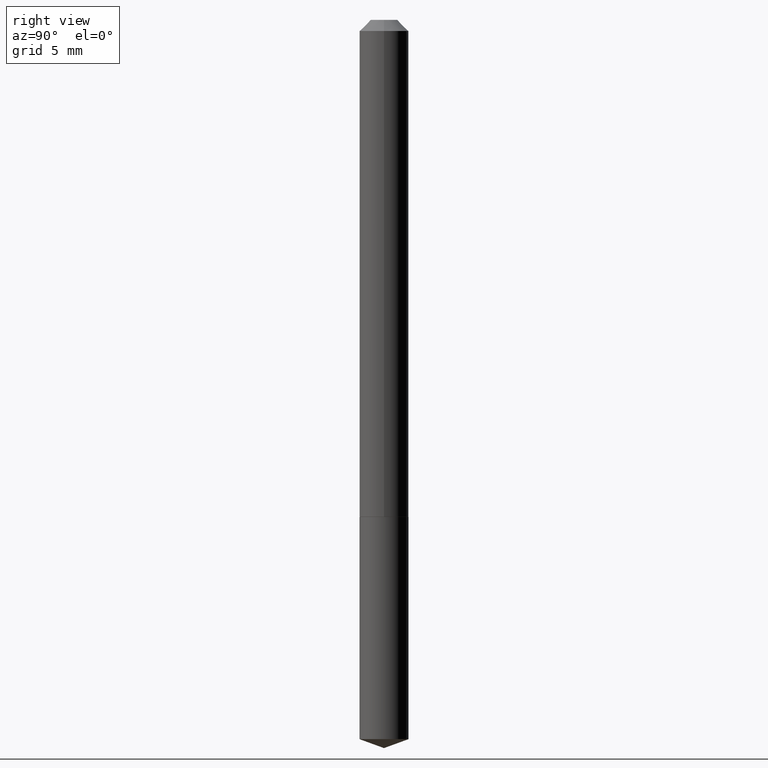
[diagram: clean part render]
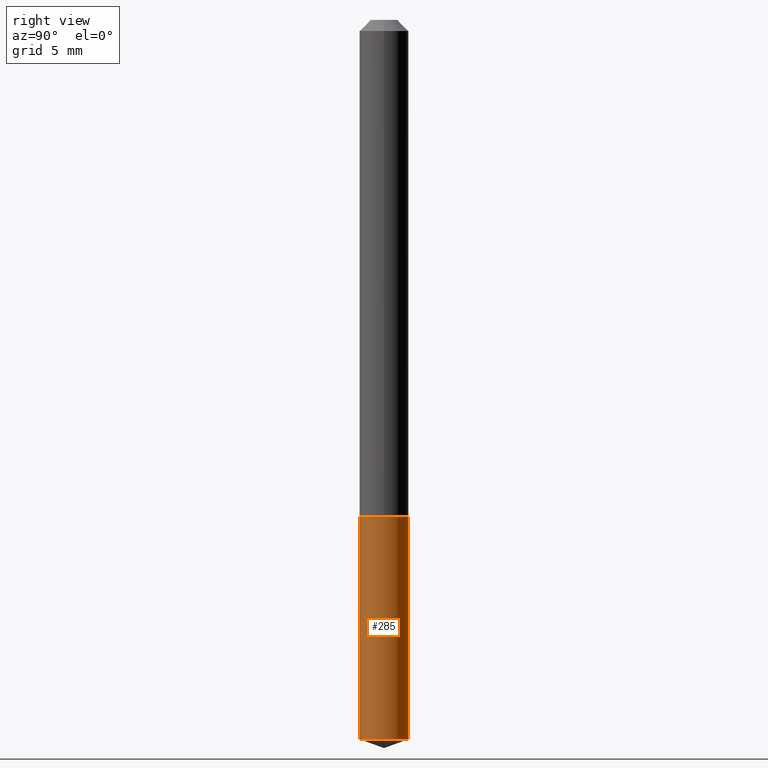
[diagram: same view with one face highlighted and labeled with its STEP entity id]
A machine part, right view. The second image highlights one B-rep face of the part: STEP entity #285.
In plain terms, the highlighted cylindrical surface (edge-blend (fillet) strip) has radius 1.7501 mm, axis along (-0, 0, 1).
Its self-contained STEP definition (entity closure, byte-faithful):
#5 = EDGE_LOOP ( 'NONE', ( #258, #278, #136, #332 ) ) ;
#6 = LINE ( 'NONE', #368, #240 ) ;
#30 = CARTESIAN_POINT ( 'NONE',  ( 3.417787203524348143E-29, -4.879694319167181624E-15, -1.397600000000000398 ) ) ;
#33 = DIRECTION ( 'NONE',  ( -6.982962677686265922E-15, -1.000000000000000000, 3.964946289788480896E-15 ) ) ;
#36 = DIRECTION ( 'NONE',  ( -2.444479038339163535E-29, 3.492898742732666091E-15, 1.000000000000000000 ) ) ;
#59 = CYLINDRICAL_SURFACE ( 'NONE', #268, 0.06890000000000000291 ) ;
#81 = CARTESIAN_POINT ( 'NONE',  ( 4.895639449387585498E-16, 0.06889999999999511793, -1.397600000000000620 ) ) ;
#89 = DIRECTION ( 'NONE',  ( -2.444479038339163815E-29, 3.492898742732665697E-15, 1.000000000000000000 ) ) ;
#106 = VERTEX_POINT ( 'NONE', #81 ) ;
#110 = DIRECTION ( 'NONE',  ( -2.444479038339163535E-29, 3.492898742732666091E-15, 1.000000000000000000 ) ) ;
#114 = CARTESIAN_POINT ( 'NONE',  ( 4.895639449387583525E-16, 0.06889999999999295299, -2.022122450859060283 ) ) ;
#119 = DIRECTION ( 'NONE',  ( -6.982962677686265922E-15, -1.000000000000000000, 3.964946289788480896E-15 ) ) ;
#122 = CIRCLE ( 'NONE', #246, 0.06890000000000000291 ) ;
#136 = ORIENTED_EDGE ( 'NONE', *, *, #298, .F. ) ;
#148 = VECTOR ( 'NONE', #344, 39.37007874015748143 ) ;
#168 = VERTEX_POINT ( 'NONE', #114 ) ;
#173 = CARTESIAN_POINT ( 'NONE',  ( -4.811261284925343361E-16, -0.06890000000000705282, -2.022122450859059839 ) ) ;
#175 = LINE ( 'NONE', #390, #148 ) ;
#177 = DIRECTION ( 'NONE',  ( -6.982962677686265922E-15, -1.000000000000000000, 3.964946289788480896E-15 ) ) ;
#182 = VERTEX_POINT ( 'NONE', #173 ) ;
#208 = EDGE_CURVE ( 'NONE', #168, #106, #175, .T. ) ;
#240 = VECTOR ( 'NONE', #89, 39.37007874015748143 ) ;
#246 = AXIS2_PLACEMENT_3D ( 'NONE', #30, #349, #119 ) ;
#255 = AXIS2_PLACEMENT_3D ( 'NONE', #333, #36, #33 ) ;
#258 = ORIENTED_EDGE ( 'NONE', *, *, #302, .T. ) ;
#267 = CARTESIAN_POINT ( 'NONE',  ( 3.417787203524348143E-29, -4.879694319167181624E-15, -1.397600000000000398 ) ) ;
#268 = AXIS2_PLACEMENT_3D ( 'NONE', #267, #110, #177 ) ;
#278 = ORIENTED_EDGE ( 'NONE', *, *, #208, .T. ) ;
#285 = ADVANCED_FACE ( 'NONE', ( #352 ), #59, .T. ) ;
#298 = EDGE_CURVE ( 'NONE', #371, #106, #122, .T. ) ;
#302 = EDGE_CURVE ( 'NONE', #182, #168, #326, .T. ) ;
#310 = CARTESIAN_POINT ( 'NONE',  ( -4.811261284925496203E-16, -0.06890000000000488789, -1.397600000000000176 ) ) ;
#326 = CIRCLE ( 'NONE', #255, 0.06890000000000000291 ) ;
#332 = ORIENTED_EDGE ( 'NONE', *, *, #363, .F. ) ;
#333 = CARTESIAN_POINT ( 'NONE',  ( 4.944419243621519326E-29, -7.061088002581114316E-15, -2.022122450859059839 ) ) ;
#344 = DIRECTION ( 'NONE',  ( -2.444479038339163815E-29, 3.492898742732665697E-15, 1.000000000000000000 ) ) ;
#349 = DIRECTION ( 'NONE',  ( -2.444479038339163535E-29, 3.492898742732666091E-15, 1.000000000000000000 ) ) ;
#352 = FACE_OUTER_BOUND ( 'NONE', #5, .T. ) ;
#363 = EDGE_CURVE ( 'NONE', #182, #371, #6, .T. ) ;
#368 = CARTESIAN_POINT ( 'NONE',  ( -4.811261284925496203E-16, -0.06890000000000488789, -1.397600000000000176 ) ) ;
#371 = VERTEX_POINT ( 'NONE', #310 ) ;
#390 = CARTESIAN_POINT ( 'NONE',  ( 4.895639449387431670E-16, 0.06889999999999511793, -1.397600000000000620 ) ) ;